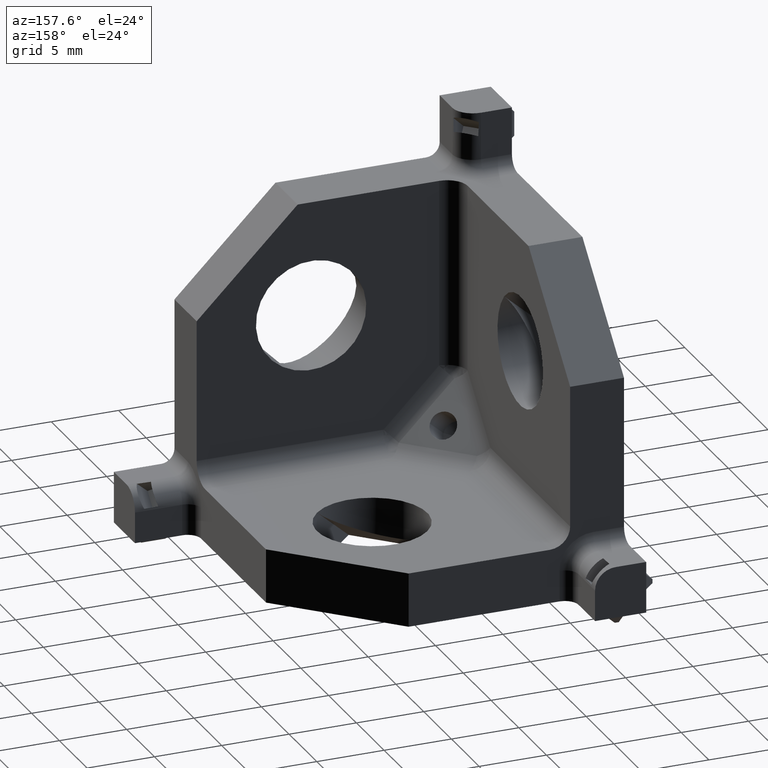
[diagram: clean part render]
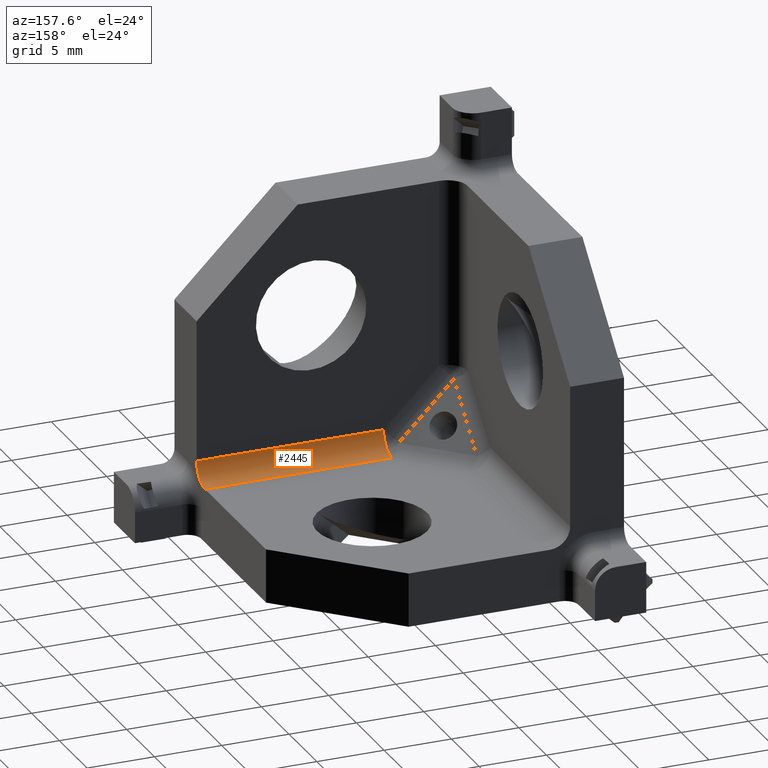
[diagram: same view with one face highlighted and labeled with its STEP entity id]
A machine part, auxiliary view. The second image highlights one B-rep face of the part: STEP entity #2445.
In plain terms, the highlighted cylindrical surface (edge-blend (fillet) strip) has radius 1.5 mm, axis along (-1, 0, 0).
Its self-contained STEP definition (entity closure, byte-faithful):
#190=CYLINDRICAL_SURFACE('',#2676,1.5);
#247=FACE_OUTER_BOUND('',#410,.T.);
#410=EDGE_LOOP('',(#2000,#2001,#2002,#2003));
#529=CIRCLE('',#2606,1.5);
#560=CIRCLE('',#2677,1.5);
#668=LINE('',#3756,#940);
#681=LINE('',#3789,#953);
#940=VECTOR('',#2966,1000.);
#953=VECTOR('',#2993,1000.);
#1223=VERTEX_POINT('',#3740);
#1224=VERTEX_POINT('',#3742);
#1228=VERTEX_POINT('',#3755);
#1241=VERTEX_POINT('',#3787);
#1463=EDGE_CURVE('',#1223,#1224,#529,.T.);
#1470=EDGE_CURVE('',#1224,#1228,#668,.T.);
#1488=EDGE_CURVE('',#1241,#1223,#681,.T.);
#1549=EDGE_CURVE('',#1241,#1228,#560,.T.);
#2000=ORIENTED_EDGE('',*,*,#1488,.F.);
#2001=ORIENTED_EDGE('',*,*,#1549,.T.);
#2002=ORIENTED_EDGE('',*,*,#1470,.F.);
#2003=ORIENTED_EDGE('',*,*,#1463,.F.);
#2445=ADVANCED_FACE('',(#247),#190,.F.);
#2606=AXIS2_PLACEMENT_3D('',#3743,#2953,#2954);
#2676=AXIS2_PLACEMENT_3D('',#3909,#3141,#3142);
#2677=AXIS2_PLACEMENT_3D('',#3910,#3143,#3144);
#2953=DIRECTION('center_axis',(-1.,0.,0.));
#2954=DIRECTION('ref_axis',(0.,0.,-1.));
#2966=DIRECTION('',(-1.,0.,1.44560289664734E-16));
#2993=DIRECTION('',(1.,0.,-1.44560289664734E-16));
#3141=DIRECTION('center_axis',(-1.,0.,1.44560289664734E-16));
#3142=DIRECTION('ref_axis',(1.44560289664734E-16,0.,1.));
#3143=DIRECTION('center_axis',(-1.,0.,1.44560289664734E-16));
#3144=DIRECTION('ref_axis',(1.44560289664734E-16,0.,1.));
#3740=CARTESIAN_POINT('',(9.5,-8.5,-10.));
#3742=CARTESIAN_POINT('',(9.5,-10.,-8.5));
#3743=CARTESIAN_POINT('Origin',(9.5,-8.5,-8.5));
#3755=CARTESIAN_POINT('',(-4.38268590217984,-10.,-8.5));
#3756=CARTESIAN_POINT('',(-1.22876246215024E-15,-10.,-8.5));
#3787=CARTESIAN_POINT('',(-4.38268590217984,-8.5,-10.));
#3789=CARTESIAN_POINT('',(14.,-8.5,-10.));
#3909=CARTESIAN_POINT('Origin',(-1.22876246215024E-15,-8.5,-8.5));
#3910=CARTESIAN_POINT('Origin',(-4.38268590217984,-8.5,-8.5));